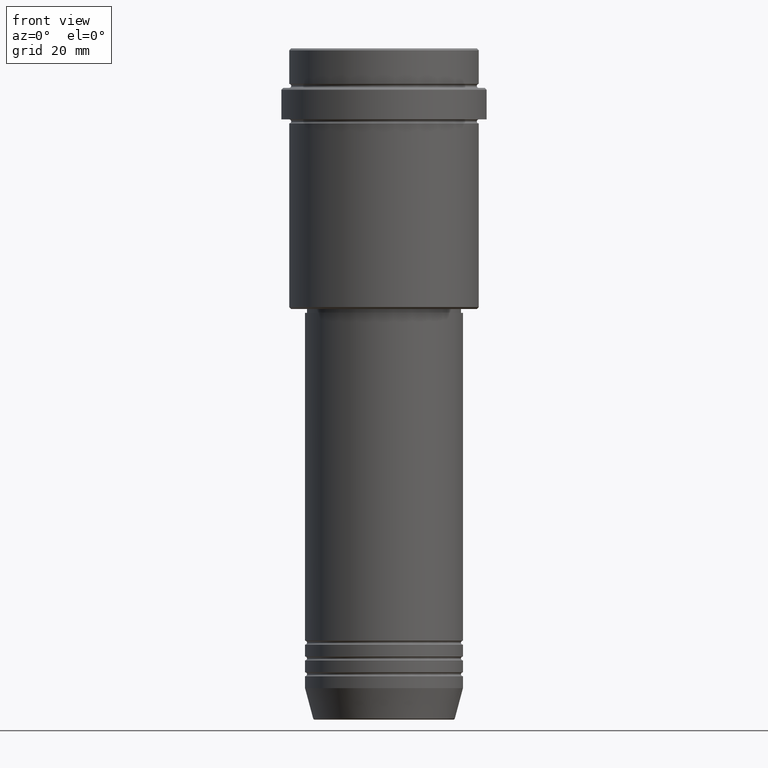
[diagram: clean part render]
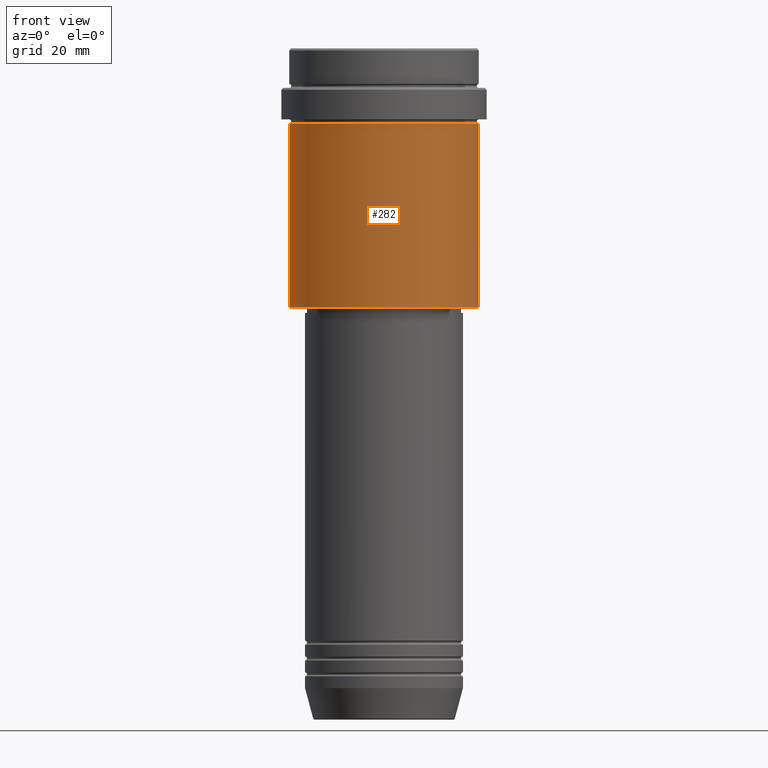
[diagram: same view with one face highlighted and labeled with its STEP entity id]
A machine part, front view. The second image highlights one B-rep face of the part: STEP entity #282.
In plain terms, the highlighted cylindrical surface (partial cylindrical patch) has radius 24 mm, axis along (-0, -0, 1).
Its self-contained STEP definition (entity closure, byte-faithful):
#6 = EDGE_CURVE ( 'NONE', #1328, #1050, #1357, .T. ) ;
#56 = ORIENTED_EDGE ( 'NONE', *, *, #942, .T. ) ;
#163 = LINE ( 'NONE', #1375, #1367 ) ;
#237 = CYLINDRICAL_SURFACE ( 'NONE', #1102, 23.99999999999998934 ) ;
#246 = VECTOR ( 'NONE', #263, 1000.000000000000000 ) ;
#248 = DIRECTION ( 'NONE',  ( -0.000000000000000000, -0.000000000000000000, 1.000000000000000000 ) ) ;
#261 = DIRECTION ( 'NONE',  ( -0.000000000000000000, -0.000000000000000000, 1.000000000000000000 ) ) ;
#263 = DIRECTION ( 'NONE',  ( -0.000000000000000000, -0.000000000000000000, 1.000000000000000000 ) ) ;
#282 = ADVANCED_FACE ( 'NONE', ( #457 ), #237, .T. ) ;
#285 = AXIS2_PLACEMENT_3D ( 'NONE', #742, #1415, #642 ) ;
#352 = EDGE_LOOP ( 'NONE', ( #842, #56, #1088, #590 ) ) ;
#353 = CARTESIAN_POINT ( 'NONE',  ( -23.99999999999998934, 2.939152317953646711E-15, -65.49999999999995737 ) ) ;
#369 = VERTEX_POINT ( 'NONE', #353 ) ;
#457 = FACE_OUTER_BOUND ( 'NONE', #352, .T. ) ;
#510 = CARTESIAN_POINT ( 'NONE',  ( -23.99999999999997868, 2.939152317953645528E-15, -19.00000000000000711 ) ) ;
#567 = DIRECTION ( 'NONE',  ( 1.000000000000000000, 0.000000000000000000, 0.000000000000000000 ) ) ;
#576 = CARTESIAN_POINT ( 'NONE',  ( -23.99999999999998934, 2.939152317953646711E-15, 0.000000000000000000 ) ) ;
#590 = ORIENTED_EDGE ( 'NONE', *, *, #6, .F. ) ;
#592 = CIRCLE ( 'NONE', #285, 23.99999999999998934 ) ;
#598 = VERTEX_POINT ( 'NONE', #639 ) ;
#639 = CARTESIAN_POINT ( 'NONE',  ( 23.99999999999998934, 0.000000000000000000, -65.49999999999995737 ) ) ;
#642 = DIRECTION ( 'NONE',  ( -1.000000000000000000, 0.000000000000000000, 0.000000000000000000 ) ) ;
#653 = AXIS2_PLACEMENT_3D ( 'NONE', #1255, #248, #1372 ) ;
#740 = CARTESIAN_POINT ( 'NONE',  ( 23.99999999999997868, 0.000000000000000000, -19.00000000000000711 ) ) ;
#742 = CARTESIAN_POINT ( 'NONE',  ( 0.000000000000000000, 0.000000000000000000, -65.49999999999995737 ) ) ;
#794 = EDGE_CURVE ( 'NONE', #369, #1328, #1363, .T. ) ;
#842 = ORIENTED_EDGE ( 'NONE', *, *, #794, .F. ) ;
#942 = EDGE_CURVE ( 'NONE', #369, #598, #592, .T. ) ;
#1050 = VERTEX_POINT ( 'NONE', #740 ) ;
#1088 = ORIENTED_EDGE ( 'NONE', *, *, #1277, .T. ) ;
#1102 = AXIS2_PLACEMENT_3D ( 'NONE', #1247, #261, #567 ) ;
#1154 = DIRECTION ( 'NONE',  ( -0.000000000000000000, -0.000000000000000000, 1.000000000000000000 ) ) ;
#1247 = CARTESIAN_POINT ( 'NONE',  ( 0.000000000000000000, 0.000000000000000000, 0.000000000000000000 ) ) ;
#1255 = CARTESIAN_POINT ( 'NONE',  ( 0.000000000000000000, 0.000000000000000000, -19.00000000000000711 ) ) ;
#1277 = EDGE_CURVE ( 'NONE', #598, #1050, #163, .T. ) ;
#1328 = VERTEX_POINT ( 'NONE', #510 ) ;
#1357 = CIRCLE ( 'NONE', #653, 23.99999999999997868 ) ;
#1363 = LINE ( 'NONE', #576, #246 ) ;
#1367 = VECTOR ( 'NONE', #1154, 1000.000000000000000 ) ;
#1372 = DIRECTION ( 'NONE',  ( 1.000000000000000000, 0.000000000000000000, 0.000000000000000000 ) ) ;
#1375 = CARTESIAN_POINT ( 'NONE',  ( 23.99999999999998934, 0.000000000000000000, 0.000000000000000000 ) ) ;
#1415 = DIRECTION ( 'NONE',  ( -0.000000000000000000, -0.000000000000000000, 1.000000000000000000 ) ) ;